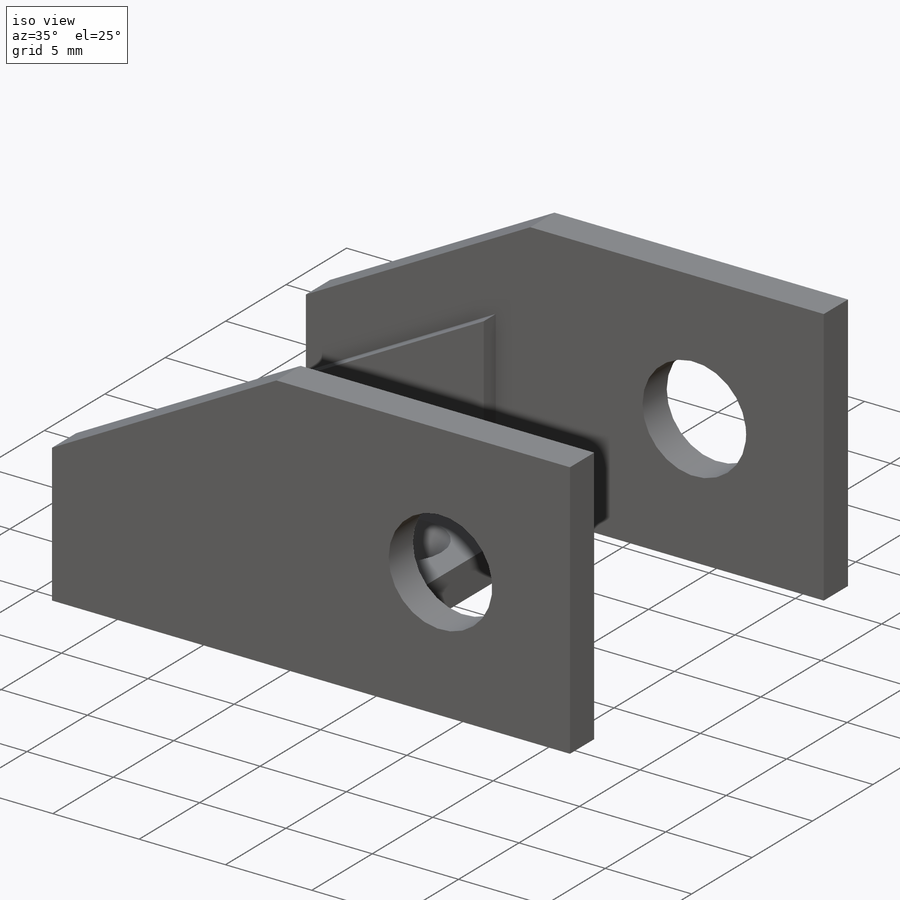
[diagram: iso view]
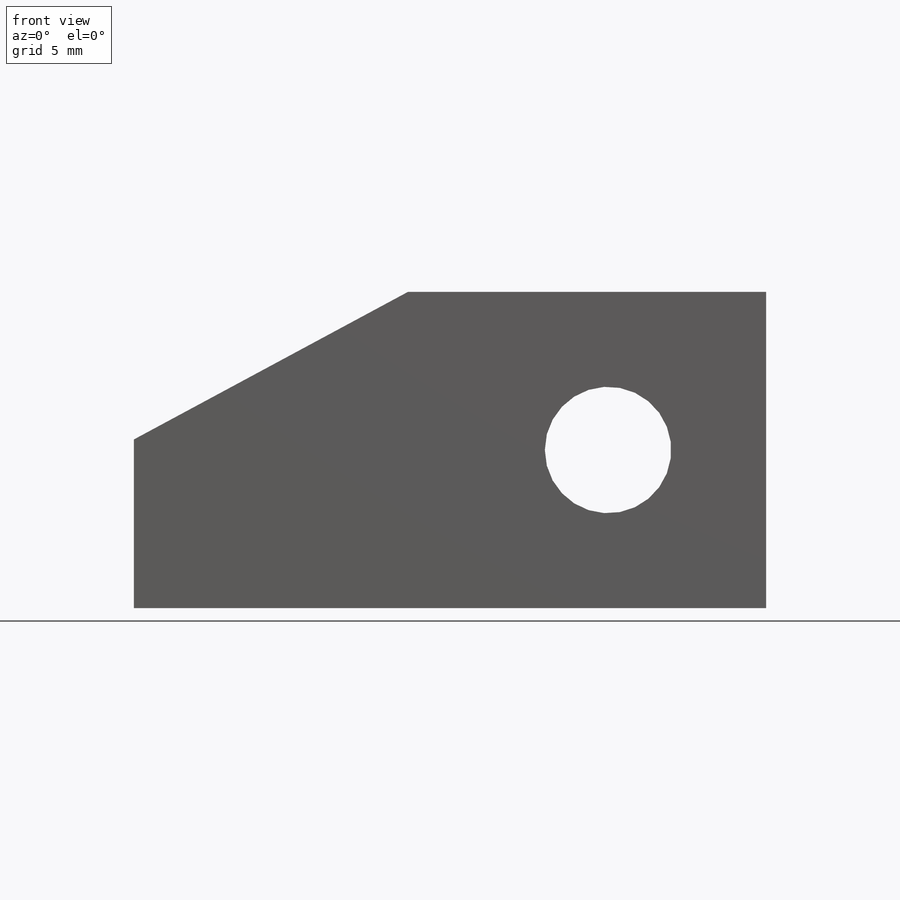
[diagram: front view]
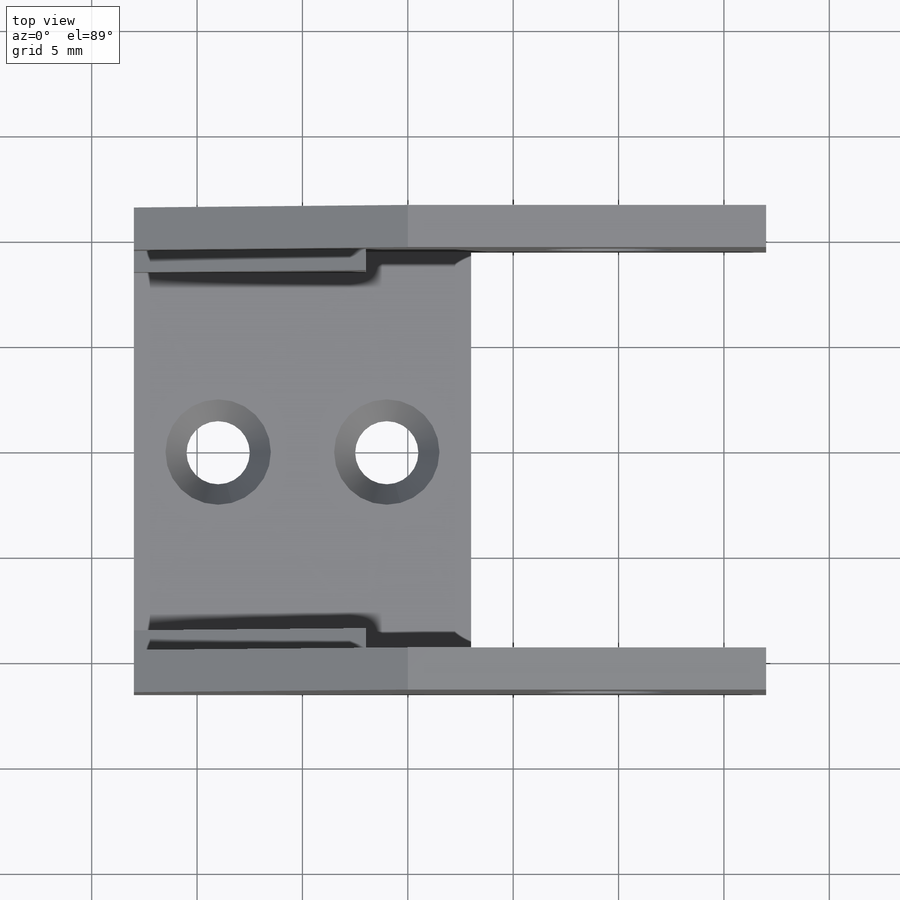
[diagram: top view]
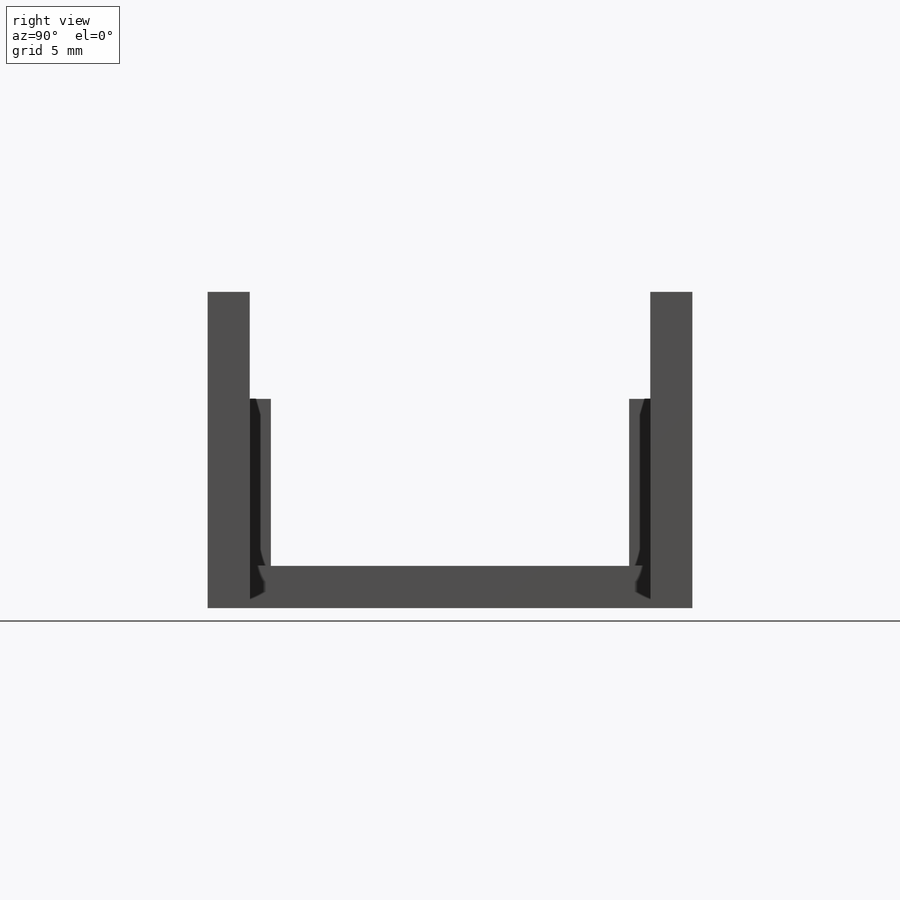
[diagram: right view]
SOLIDWORKS PART (.sldprt)
format: sldprt  version: not decoded by parser v0  size: 252,928 bytes
history: native  units: mm
features: sketch x7, extrude x4, plane x3, cut_extrude x3, material x1, mirror x1, chamfer x1 (+10 scaffold rows collapsed)
feature tree (30):
  scaffold x10  (default folders/planes/origin — collapsed)
  material  "Matériau <non spécifié>"
  plane  "Plan de face"
  plane  "Plan de dessus"
  plane  "Plan de droite"
  sketch  "Esquisse2"  dims[c1.D1=16.0mm c1.D2=19.0mm c1.D3=16.0mm c2.D2=16.0mm c2.D1=19.0mm c3.D2=16.0mm]
  extrude  "Boss.-Extru.1"  Depth=2mm
  sketch  "Esquisse5"  dims[D1=2.0mm]
  extrude  "Boss.-Extru.2"  Depth=15mm
  sketch  "Esquisse6"  dims[D1=8.0mm D2=3.0mm]
  cut_extrude  "Enlèv. mat.-Extru.1"  [1 undecoded]
  sketch  "Esquisse7"
  extrude  "Boss.-Extru.3"  Depth=14mm
  sketch  "Esquisse8"  dims[c1.D1=2.0mm c1.D2=~7.717475mm c2.D2=90.0deg c3.D2=5.0mm]
  extrude  "Boss.-Extru.4"  Depth=1mm
  sketch  "Esquisse9"  dims[D2=6.0mm D1=7.5mm]
  cut_extrude  "Enlèv. mat.-Extru.2"  [1 undecoded]
  mirror  "Symétrie1"
  sketch  "Esquisse11"  dims[D2=3.0mm D1=4.0mm D3=4.0mm]
  cut_extrude  "Enlèv. mat.-Extru.3"  [1 undecoded]
  chamfer  "Chanfrein1"  Distance=1mm Angle=60deg
decode coverage: 11 of 16 modeling features carry decoded parameters
note: ~ marks probable driven/reference dimensions
note: 3 parameter values undecoded
summary: no parameter record found for 3 features
note: suppression state not decoded; provenance and decode notes live in map.json
